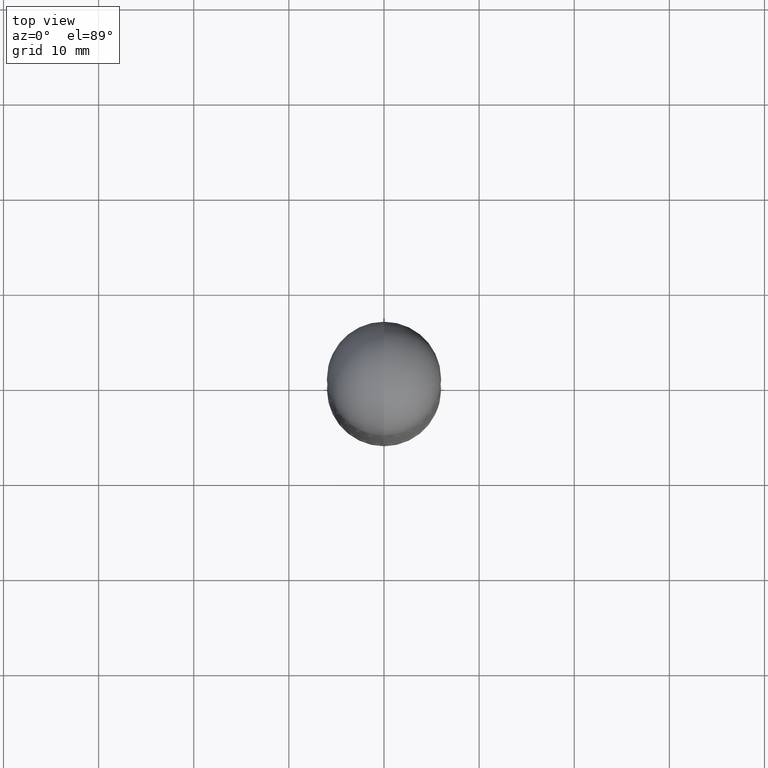
[diagram: clean part render]
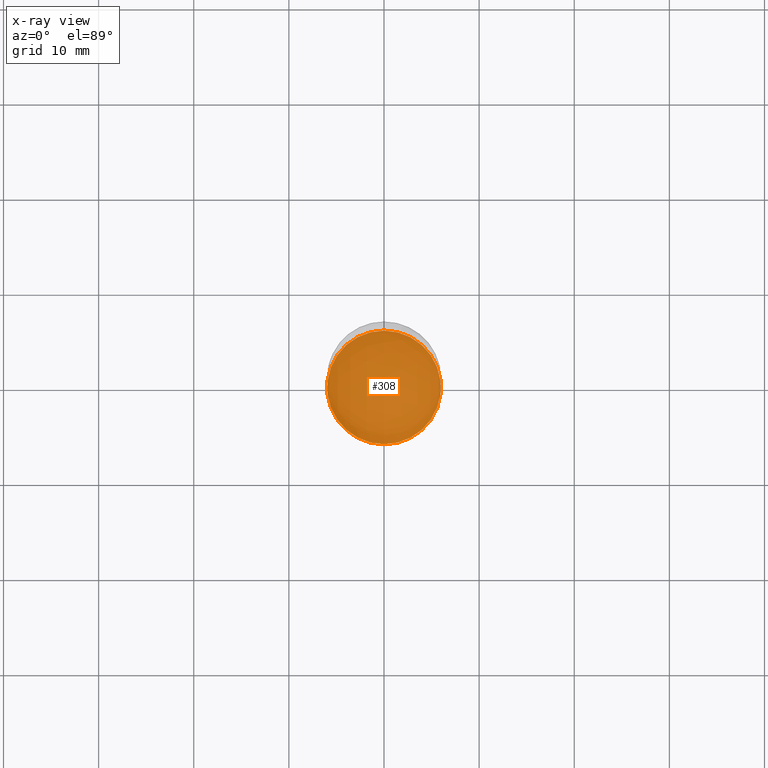
[diagram: x-ray — body ghosted, one internal face saturated and labeled with its STEP entity id]
A machine part, top view, then the same camera in x-ray: the body is ghosted and one INTERNAL B-rep face — a face not visible from any outside direction — is saturated and labeled: STEP entity #308.
In plain terms, the highlighted planar face has unit normal (-0, 0, 1).
Its self-contained STEP definition (entity closure, byte-faithful):
#32 = CARTESIAN_POINT ( 'NONE',  ( 5.678073753177936636E-29, -8.113950359584445403E-15, -2.322899999999999743 ) ) ;
#33 = CARTESIAN_POINT ( 'NONE',  ( 5.678073753177936636E-29, -8.113950359584445403E-15, -2.322899999999999743 ) ) ;
#36 = EDGE_LOOP ( 'NONE', ( #810, #58 ) ) ;
#57 = CARTESIAN_POINT ( 'NONE',  ( -1.642392821791752924E-15, -0.2352000000000081248, -2.322899999999998855 ) ) ;
#58 = ORIENTED_EDGE ( 'NONE', *, *, #646, .F. ) ;
#121 = DIRECTION ( 'NONE',  ( -2.444390095646793913E-29, 3.493026113730442947E-15, 1.000000000000000000 ) ) ;
#123 = CIRCLE ( 'NONE', #634, 0.2351999999999999924 ) ;
#134 = AXIS2_PLACEMENT_3D ( 'NONE', #363, #121, #380 ) ;
#153 = VERTEX_POINT ( 'NONE', #337 ) ;
#185 = FACE_OUTER_BOUND ( 'NONE', #36, .T. ) ;
#223 = DIRECTION ( 'NONE',  ( -6.982962677686265133E-15, -1.000000000000000000, 3.484499991918703113E-15 ) ) ;
#252 = EDGE_CURVE ( 'NONE', #277, #153, #440, .T. ) ;
#277 = VERTEX_POINT ( 'NONE', #57 ) ;
#282 = DIRECTION ( 'NONE',  ( -2.444390095646794193E-29, 3.493026113730442947E-15, 1.000000000000000000 ) ) ;
#291 = DIRECTION ( 'NONE',  ( -2.444390095646794193E-29, 3.493026113730442947E-15, 1.000000000000000000 ) ) ;
#308 = ADVANCED_FACE ( 'NONE', ( #185 ), #548, .F. ) ;
#337 = CARTESIAN_POINT ( 'NONE',  ( 1.674749228186613674E-15, 0.2351999999999918600, -2.322900000000000631 ) ) ;
#363 = CARTESIAN_POINT ( 'NONE',  ( 5.678073753177936636E-29, -8.113950359584445403E-15, -2.322899999999999743 ) ) ;
#380 = DIRECTION ( 'NONE',  ( -6.982962677686265922E-15, -1.000000000000000000, 3.493026113730442947E-15 ) ) ;
#440 = CIRCLE ( 'NONE', #618, 0.2351999999999999924 ) ;
#548 = PLANE ( 'NONE',  #134 ) ;
#618 = AXIS2_PLACEMENT_3D ( 'NONE', #33, #291, #223 ) ;
#634 = AXIS2_PLACEMENT_3D ( 'NONE', #32, #282, #785 ) ;
#646 = EDGE_CURVE ( 'NONE', #153, #277, #123, .T. ) ;
#785 = DIRECTION ( 'NONE',  ( -6.982962677686265133E-15, -1.000000000000000000, 3.484499991918703113E-15 ) ) ;
#810 = ORIENTED_EDGE ( 'NONE', *, *, #252, .F. ) ;